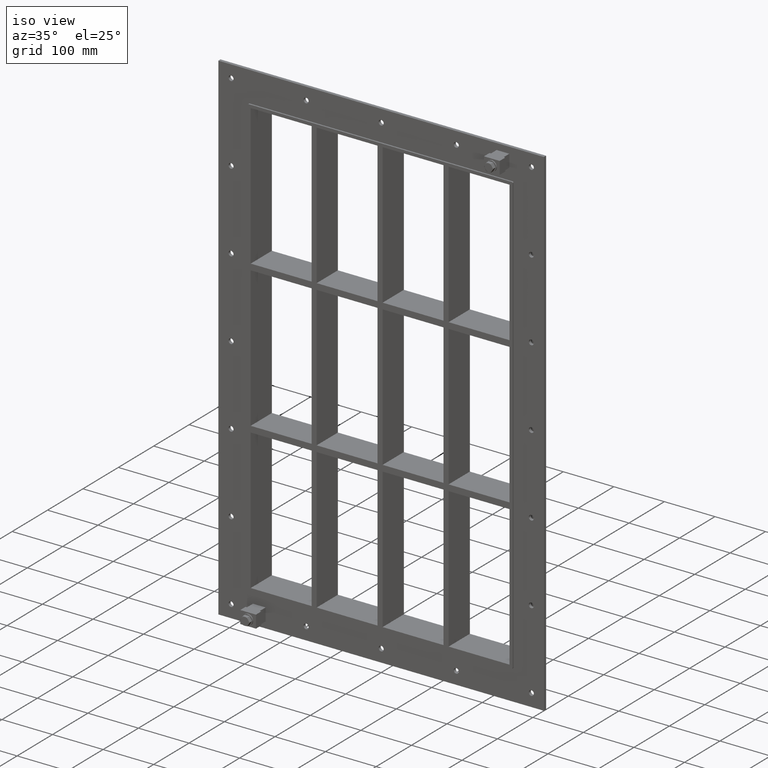
[diagram: clean part render]
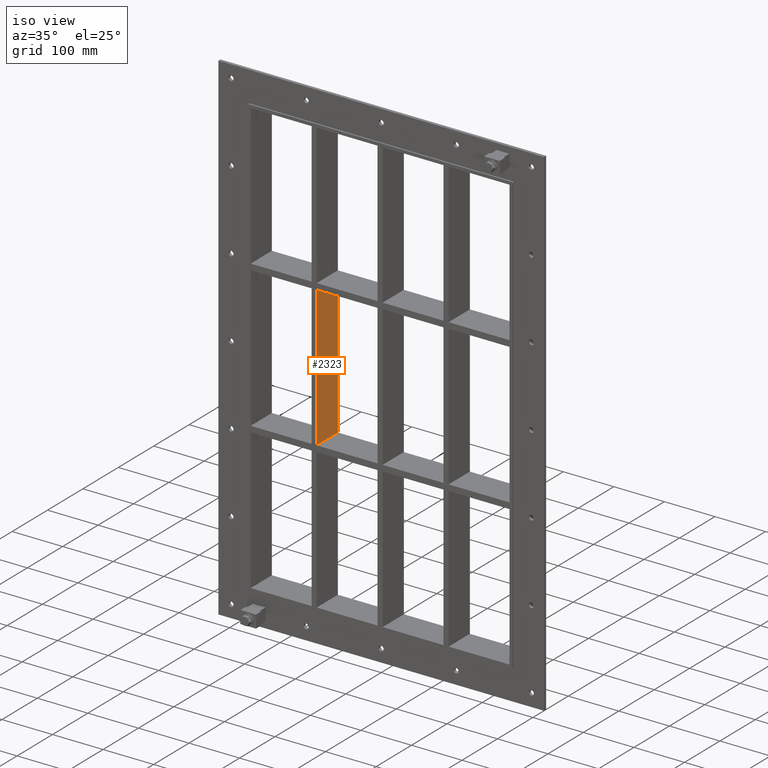
[diagram: same view with one face highlighted and labeled with its STEP entity id]
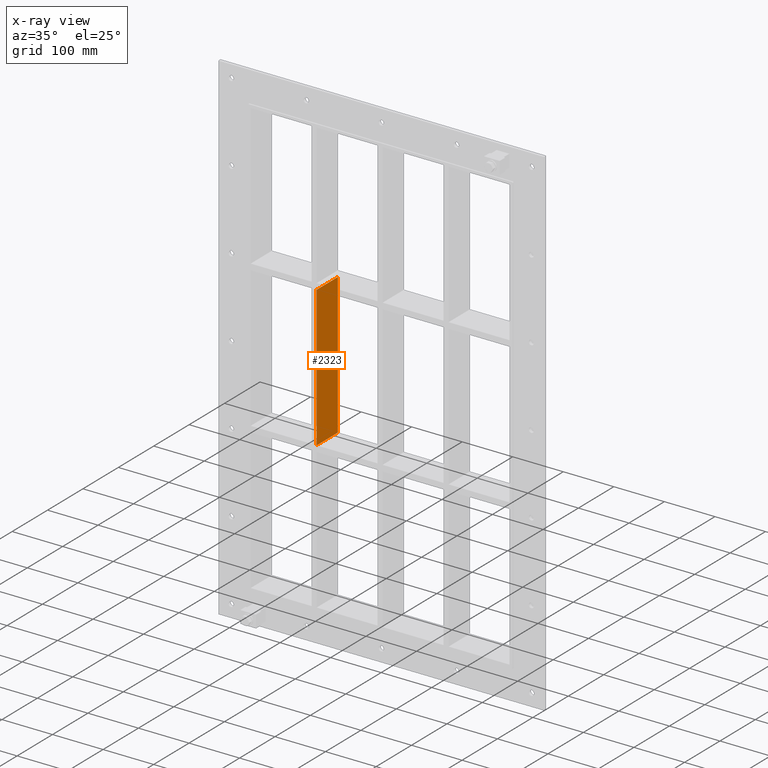
[diagram: x-ray of the same camera — body ghosted, the highlighted face saturated]
A machine part, iso view. The second image highlights one B-rep face of the part: STEP entity #2323.
The next image is the same camera in x-ray: the body ghosted, the highlighted face saturated — about 0% of this face is hidden behind the body in this view.
In plain terms, the highlighted planar face has unit normal (1, 0, 0).
Its self-contained STEP definition (entity closure, byte-faithful):
#683=CARTESIAN_POINT('',(-125.49999999999272,-3.0,138.99999999998857));
#684=VERTEX_POINT('',#683);
#691=CARTESIAN_POINT('',(-125.49999999999272,57.0,138.99999999998857));
#692=VERTEX_POINT('',#691);
#693=CARTESIAN_POINT('',(-125.49999999999272,57.0,138.99999999998857));
#694=DIRECTION('',(0.0,-1.0,0.0));
#695=VECTOR('',#694,60.0);
#696=LINE('',#693,#695);
#697=EDGE_CURVE('',#692,#684,#696,.T.);
#1410=CARTESIAN_POINT('',(-125.49999999999272,57.0,-138.99999999999977));
#1411=VERTEX_POINT('',#1410);
#1412=CARTESIAN_POINT('',(-125.49999999999272,57.0,138.99999999998857));
#1413=DIRECTION('',(0.0,0.0,-1.0));
#1414=VECTOR('',#1413,277.99999999998835);
#1415=LINE('',#1412,#1414);
#1416=EDGE_CURVE('',#692,#1411,#1415,.T.);
#1976=CARTESIAN_POINT('',(-125.49999999999272,-3.0,-138.99999999999977));
#1977=VERTEX_POINT('',#1976);
#1984=CARTESIAN_POINT('',(-125.49999999999272,-3.0,138.99999999998857));
#1985=DIRECTION('',(0.0,0.0,-1.0));
#1986=VECTOR('',#1985,277.99999999998835);
#1987=LINE('',#1984,#1986);
#1988=EDGE_CURVE('',#684,#1977,#1987,.T.);
#2167=CARTESIAN_POINT('',(-125.49999999999272,-3.0,-138.99999999999977));
#2168=DIRECTION('',(0.0,1.0,0.0));
#2169=VECTOR('',#2168,60.0);
#2170=LINE('',#2167,#2169);
#2171=EDGE_CURVE('',#1977,#1411,#2170,.T.);
#2312=CARTESIAN_POINT('',(-125.49999999999272,-3.0,429.00000000000011));
#2313=DIRECTION('',(1.0,0.0,0.0));
#2314=DIRECTION('',(0.0,0.0,-1.0));
#2315=AXIS2_PLACEMENT_3D('',#2312,#2313,#2314);
#2316=PLANE('',#2315);
#2317=ORIENTED_EDGE('',*,*,#697,.T.);
#2318=ORIENTED_EDGE('',*,*,#1988,.T.);
#2319=ORIENTED_EDGE('',*,*,#2171,.T.);
#2320=ORIENTED_EDGE('',*,*,#1416,.F.);
#2321=EDGE_LOOP('',(#2317,#2318,#2319,#2320));
#2322=FACE_OUTER_BOUND('',#2321,.T.);
#2323=ADVANCED_FACE('',(#2322),#2316,.T.);